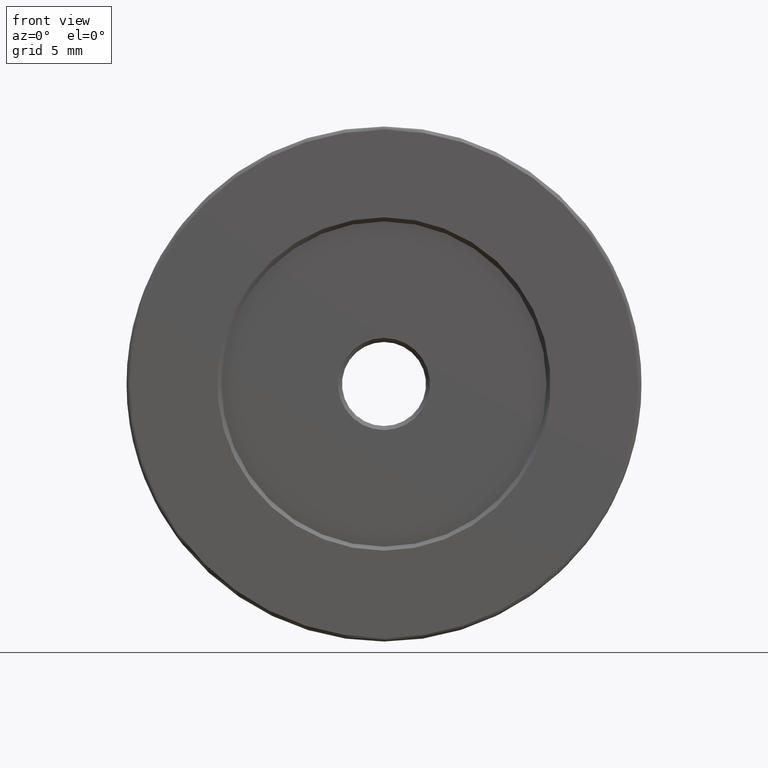
[diagram: clean part render]
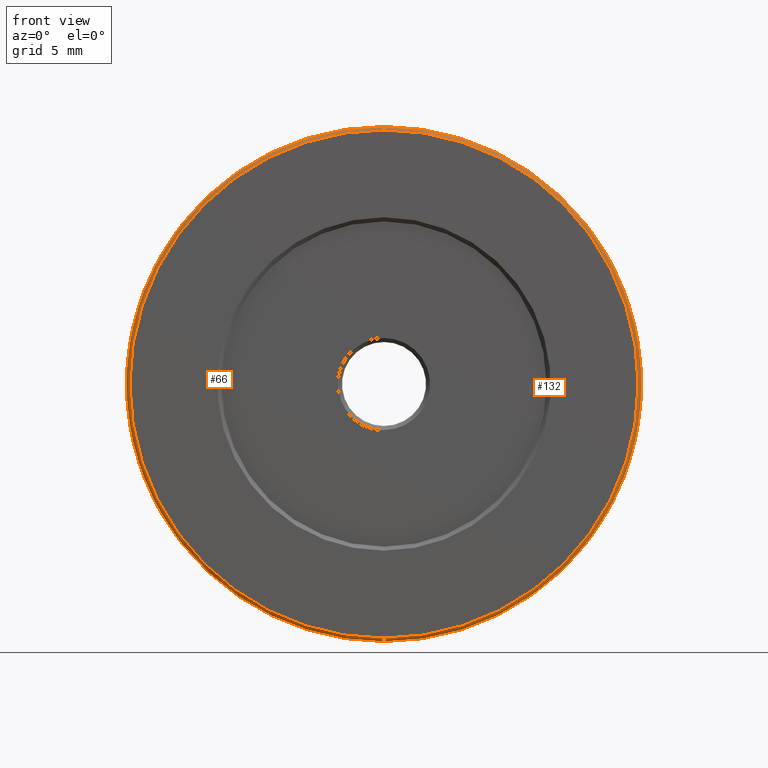
[diagram: same view with one multi-face feature highlighted, each face labeled with its STEP entity id]
A machine part, front view. The highlighted faces form ONE feature: a constant-radius fillet chain: 2 tangent blend faces with common blend radius 0.25 mm. The faces share edges in the B-rep.
Their STEP definitions:
[1] entity #132 (Torus):
#5 = EDGE_CURVE ( 'NONE', #120, #249, #591, .T. ) ;
#18 = CARTESIAN_POINT ( 'NONE',  ( -7.546808913101048510, -5.143595127302727832, 38.00000000000000000 ) ) ;
#40 = AXIS2_PLACEMENT_3D ( 'NONE', #203, #206, #358 ) ;
#56 = DIRECTION ( 'NONE',  ( -0.000000000000000000, -1.000000000000000000, -0.000000000000000000 ) ) ;
#71 = EDGE_CURVE ( 'NONE', #184, #249, #155, .T. ) ;
#100 = ORIENTED_EDGE ( 'NONE', *, *, #5, .T. ) ;
#107 = DIRECTION ( 'NONE',  ( 0.000000000000000000, 1.000000000000000000, 0.000000000000000000 ) ) ;
#108 = CARTESIAN_POINT ( 'NONE',  ( -7.546808913101045846, -5.393595127302728720, 19.25000000000000000 ) ) ;
#120 = VERTEX_POINT ( 'NONE', #108 ) ;
#132 = ADVANCED_FACE ( 'NONE', ( #541 ), #417, .T. ) ;
#145 = DIRECTION ( 'NONE',  ( -1.000000000000000000, 0.000000000000000000, 0.000000000000000000 ) ) ;
#155 = CIRCLE ( 'NONE', #548, 18.99999999999999645 ) ;
#184 = VERTEX_POINT ( 'NONE', #347 ) ;
#203 = CARTESIAN_POINT ( 'NONE',  ( -7.546808913101045846, -5.143595127302727832, 19.25000000000000000 ) ) ;
#206 = DIRECTION ( 'NONE',  ( 1.000000000000000000, -0.000000000000000000, 1.224646799147353207E-16 ) ) ;
#210 = DIRECTION ( 'NONE',  ( 0.000000000000000000, 0.000000000000000000, 1.000000000000000000 ) ) ;
#211 = EDGE_CURVE ( 'NONE', #120, #349, #479, .T. ) ;
#213 = ORIENTED_EDGE ( 'NONE', *, *, #211, .F. ) ;
#218 = AXIS2_PLACEMENT_3D ( 'NONE', #393, #145, #574 ) ;
#249 = VERTEX_POINT ( 'NONE', #554 ) ;
#260 = CARTESIAN_POINT ( 'NONE',  ( -7.546808913101048510, -5.393595127302728720, 38.00000000000000000 ) ) ;
#306 = DIRECTION ( 'NONE',  ( 0.000000000000000000, 1.000000000000000000, 0.000000000000000000 ) ) ;
#331 = AXIS2_PLACEMENT_3D ( 'NONE', #260, #56, #589 ) ;
#347 = CARTESIAN_POINT ( 'NONE',  ( -7.546808913101045846, -5.143595127302727832, 56.99999999999999289 ) ) ;
#349 = VERTEX_POINT ( 'NONE', #551 ) ;
#358 = DIRECTION ( 'NONE',  ( 0.000000000000000000, 0.000000000000000000, -1.000000000000000000 ) ) ;
#367 = EDGE_LOOP ( 'NONE', ( #213, #100, #458, #564 ) ) ;
#393 = CARTESIAN_POINT ( 'NONE',  ( -7.546808913101048510, -5.143595127302727832, 56.74999999999999289 ) ) ;
#397 = CARTESIAN_POINT ( 'NONE',  ( -7.546808913101048510, -5.143595127302727832, 38.00000000000000000 ) ) ;
#417 = TOROIDAL_SURFACE ( 'NONE', #457, 18.75000000000000000, 0.2500000000000000000 ) ;
#418 = EDGE_CURVE ( 'NONE', #349, #184, #602, .T. ) ;
#457 = AXIS2_PLACEMENT_3D ( 'NONE', #397, #306, #531 ) ;
#458 = ORIENTED_EDGE ( 'NONE', *, *, #71, .F. ) ;
#479 = CIRCLE ( 'NONE', #331, 18.74999999999999645 ) ;
#531 = DIRECTION ( 'NONE',  ( 0.000000000000000000, 0.000000000000000000, 1.000000000000000000 ) ) ;
#541 = FACE_OUTER_BOUND ( 'NONE', #367, .T. ) ;
#548 = AXIS2_PLACEMENT_3D ( 'NONE', #18, #107, #210 ) ;
#551 = CARTESIAN_POINT ( 'NONE',  ( -7.546808913101048510, -5.393595127302728720, 56.74999999999999289 ) ) ;
#554 = CARTESIAN_POINT ( 'NONE',  ( -7.546808913101048510, -5.143595127302727832, 19.00000000000000000 ) ) ;
#564 = ORIENTED_EDGE ( 'NONE', *, *, #418, .F. ) ;
#574 = DIRECTION ( 'NONE',  ( 0.000000000000000000, 0.000000000000000000, 1.000000000000000000 ) ) ;
#589 = DIRECTION ( 'NONE',  ( 0.000000000000000000, 0.000000000000000000, 1.000000000000000000 ) ) ;
#591 = CIRCLE ( 'NONE', #40, 0.2500000000000002220 ) ;
#602 = CIRCLE ( 'NONE', #218, 0.2500000000000002220 ) ;
[2] entity #66 (Torus):
#5 = EDGE_CURVE ( 'NONE', #120, #249, #591, .T. ) ;
#40 = AXIS2_PLACEMENT_3D ( 'NONE', #203, #206, #358 ) ;
#48 = DIRECTION ( 'NONE',  ( -0.000000000000000000, -1.000000000000000000, -0.000000000000000000 ) ) ;
#49 = ORIENTED_EDGE ( 'NONE', *, *, #552, .F. ) ;
#51 = DIRECTION ( 'NONE',  ( 0.000000000000000000, 1.000000000000000000, 0.000000000000000000 ) ) ;
#66 = ADVANCED_FACE ( 'NONE', ( #478 ), #392, .T. ) ;
#96 = CARTESIAN_POINT ( 'NONE',  ( -7.546808913101048510, -5.143595127302727832, 38.00000000000000000 ) ) ;
#99 = CARTESIAN_POINT ( 'NONE',  ( -7.546808913101048510, -5.393595127302728720, 38.00000000000000000 ) ) ;
#108 = CARTESIAN_POINT ( 'NONE',  ( -7.546808913101045846, -5.393595127302728720, 19.25000000000000000 ) ) ;
#120 = VERTEX_POINT ( 'NONE', #108 ) ;
#145 = DIRECTION ( 'NONE',  ( -1.000000000000000000, 0.000000000000000000, 0.000000000000000000 ) ) ;
#184 = VERTEX_POINT ( 'NONE', #347 ) ;
#203 = CARTESIAN_POINT ( 'NONE',  ( -7.546808913101045846, -5.143595127302727832, 19.25000000000000000 ) ) ;
#206 = DIRECTION ( 'NONE',  ( 1.000000000000000000, -0.000000000000000000, 1.224646799147353207E-16 ) ) ;
#218 = AXIS2_PLACEMENT_3D ( 'NONE', #393, #145, #574 ) ;
#249 = VERTEX_POINT ( 'NONE', #554 ) ;
#277 = ORIENTED_EDGE ( 'NONE', *, *, #462, .F. ) ;
#285 = ORIENTED_EDGE ( 'NONE', *, *, #5, .F. ) ;
#305 = CARTESIAN_POINT ( 'NONE',  ( -7.546808913101048510, -5.143595127302727832, 38.00000000000000000 ) ) ;
#320 = ORIENTED_EDGE ( 'NONE', *, *, #418, .T. ) ;
#330 = AXIS2_PLACEMENT_3D ( 'NONE', #96, #51, #470 ) ;
#347 = CARTESIAN_POINT ( 'NONE',  ( -7.546808913101045846, -5.143595127302727832, 56.99999999999999289 ) ) ;
#349 = VERTEX_POINT ( 'NONE', #551 ) ;
#351 = AXIS2_PLACEMENT_3D ( 'NONE', #305, #487, #441 ) ;
#358 = DIRECTION ( 'NONE',  ( 0.000000000000000000, 0.000000000000000000, -1.000000000000000000 ) ) ;
#392 = TOROIDAL_SURFACE ( 'NONE', #351, 18.75000000000000000, 0.2500000000000000000 ) ;
#393 = CARTESIAN_POINT ( 'NONE',  ( -7.546808913101048510, -5.143595127302727832, 56.74999999999999289 ) ) ;
#401 = CIRCLE ( 'NONE', #515, 18.74999999999999645 ) ;
#418 = EDGE_CURVE ( 'NONE', #349, #184, #602, .T. ) ;
#441 = DIRECTION ( 'NONE',  ( 0.000000000000000000, 0.000000000000000000, 1.000000000000000000 ) ) ;
#462 = EDGE_CURVE ( 'NONE', #349, #120, #401, .T. ) ;
#470 = DIRECTION ( 'NONE',  ( 0.000000000000000000, 0.000000000000000000, 1.000000000000000000 ) ) ;
#478 = FACE_OUTER_BOUND ( 'NONE', #512, .T. ) ;
#487 = DIRECTION ( 'NONE',  ( 0.000000000000000000, 1.000000000000000000, 0.000000000000000000 ) ) ;
#491 = CIRCLE ( 'NONE', #330, 18.99999999999999645 ) ;
#512 = EDGE_LOOP ( 'NONE', ( #285, #277, #320, #49 ) ) ;
#515 = AXIS2_PLACEMENT_3D ( 'NONE', #99, #48, #612 ) ;
#551 = CARTESIAN_POINT ( 'NONE',  ( -7.546808913101048510, -5.393595127302728720, 56.74999999999999289 ) ) ;
#552 = EDGE_CURVE ( 'NONE', #249, #184, #491, .T. ) ;
#554 = CARTESIAN_POINT ( 'NONE',  ( -7.546808913101048510, -5.143595127302727832, 19.00000000000000000 ) ) ;
#574 = DIRECTION ( 'NONE',  ( 0.000000000000000000, 0.000000000000000000, 1.000000000000000000 ) ) ;
#591 = CIRCLE ( 'NONE', #40, 0.2500000000000002220 ) ;
#602 = CIRCLE ( 'NONE', #218, 0.2500000000000002220 ) ;
#612 = DIRECTION ( 'NONE',  ( 0.000000000000000000, 0.000000000000000000, 1.000000000000000000 ) ) ;